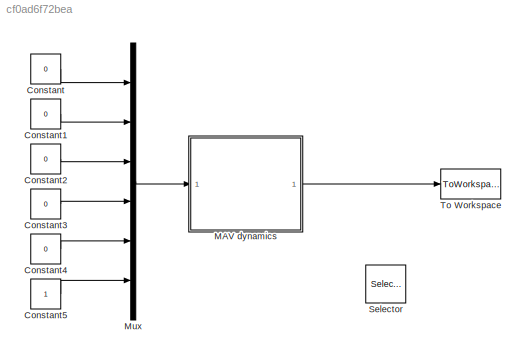
MODEL slx_cf0ad6f72bea
KIND model
CONFIG AbsTol = auto
CONFIG FixedStep = auto
CONFIG MaxStep = auto
CONFIG MinStep = auto
CONFIG RelTol = 1e-3
CONFIG SampleTimeConstraint = Unconstrained
CONFIG Solver = VariableStepAuto
CONFIG SolverMode = Auto
CONFIG SolverName = VariableStepAuto
CONFIG StartTime = 0.0
CONFIG StopTime = 10.0
BLOCK [Constant] Constant
  Value = 0
BLOCK [Constant] Constant1
  Value = 0
BLOCK [Constant] Constant2
  Value = 0
BLOCK [Constant] Constant3
  Value = 0
BLOCK [Constant] Constant4
  Value = 0
BLOCK [Constant] Constant5
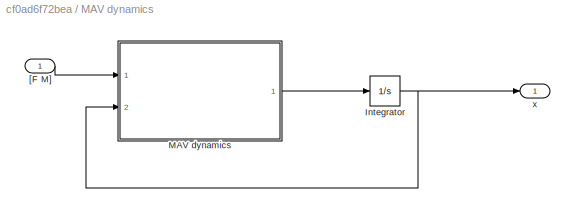
BLOCK [SubSystem] MAV dynamics
  Ports = [1, 1]
  RequestExecContextInheritance = off
  Variant = off
BLOCK [Integrator] MAV dynamics/Integrator
  InitialCondition = [0;0;0;0;0;0;0;0;0;0;0;0]
  Ports = [1, 1]
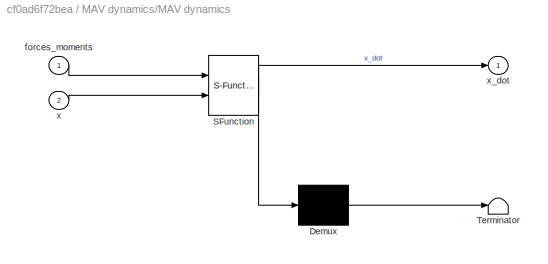
BLOCK [SubSystem] MAV dynamics/MAV dynamics
  ErrorFcn = Stateflow.Translate.translate
  PermitHierarchicalResolution = ExplicitOnly
  Ports = [2, 1]
  RequestExecContextInheritance = off
  SFBlockType = MATLAB Function
  TreatAsAtomicUnit = on
  Variant = off
BLOCK [Demux] MAV dynamics/MAV dynamics/ Demux 
  Outputs = 1
  Ports = [1, 1]
BLOCK [S-Function] MAV dynamics/MAV dynamics/ SFunction 
  EnableBusSupport = on
  FunctionName = sf_sfun
  Parameters = P
  PortCounts = [2 2]
  Ports = [2, 2]
  SFunctionDeploymentMode = off
  Tag = Stateflow S-Function test_dynamics 1
BLOCK [Terminator] MAV dynamics/MAV dynamics/ Terminator 
BLOCK [Inport] MAV dynamics/MAV dynamics/forces_moments
  IconDisplay = Port number
BLOCK [Inport] MAV dynamics/MAV dynamics/x
  IconDisplay = Port number
  Port = 2
BLOCK [Outport] MAV dynamics/MAV dynamics/x_dot
  IconDisplay = Port number
BLOCK [Inport] MAV dynamics/[F M]
  IconDisplay = Port number
  OutMax = [6]
  OutMin = [6]
BLOCK [Outport] MAV dynamics/x
  IconDisplay = Port number
BLOCK [Mux] Mux
  DisplayOption = bar
  Inputs = 6
  Ports = [6, 1]
BLOCK [Selector] Selector
  IndexOptions = Index vector (dialog)
  Indices = [1:9]
  InputPortWidth = 12
  OutputSizes = 1
  Ports = [1, 1]
BLOCK [ToWorkspace] To Workspace
  FixptAsFi = on
  MaxDataPoints = inf
  Ports = [1]
  SampleTime = -1
  Save2DSignal = 3-D array (concatenate along third dimension)
  SaveFormat = Timeseries
  VariableName = data
LINE Constant1:1 -> Mux:2
LINE Constant2:1 -> Mux:3
LINE Constant3:1 -> Mux:4
LINE Constant4:1 -> Mux:5
LINE Constant5:1 -> Mux:6
LINE Constant:1 -> Mux:1
NET MAV dynamics/Integrator:1 -> MAV dynamics/MAV dynamics:2, MAV dynamics/x:1
LINE MAV dynamics/MAV dynamics:1 -> MAV dynamics/Integrator:1
LINE MAV dynamics/[F M]:1 -> MAV dynamics/MAV dynamics:1
LINE MAV dynamics:1 -> To Workspace:1
LINE Mux:1 -> MAV dynamics:1
note: NET lines group one-source signal fan-out (src -> all destinations, sorted); 1:1 wires keep LINE
CHART MAV dynamics/MAV dynamics states=1 transitions=1
  STATE_LABEL 'eML_blk_kernel()'
  STATE_LABEL 'SCRIPT:\nfunction x_dot = fcn(forces_moments, x, P)\n\n    x_dot = mav_dynamics(forces_moments, x, P);\n    \nend'
